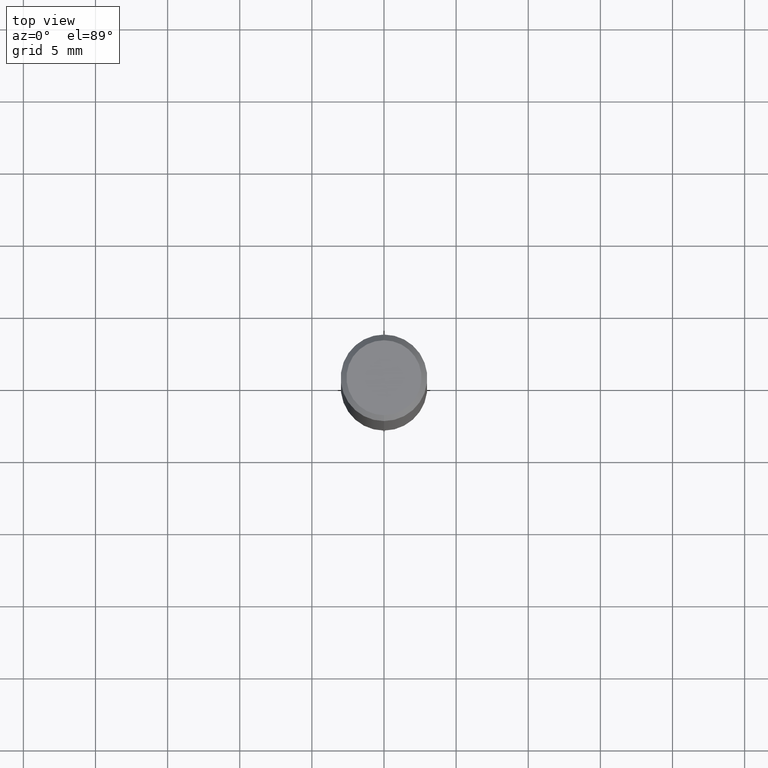
[diagram: clean part render]
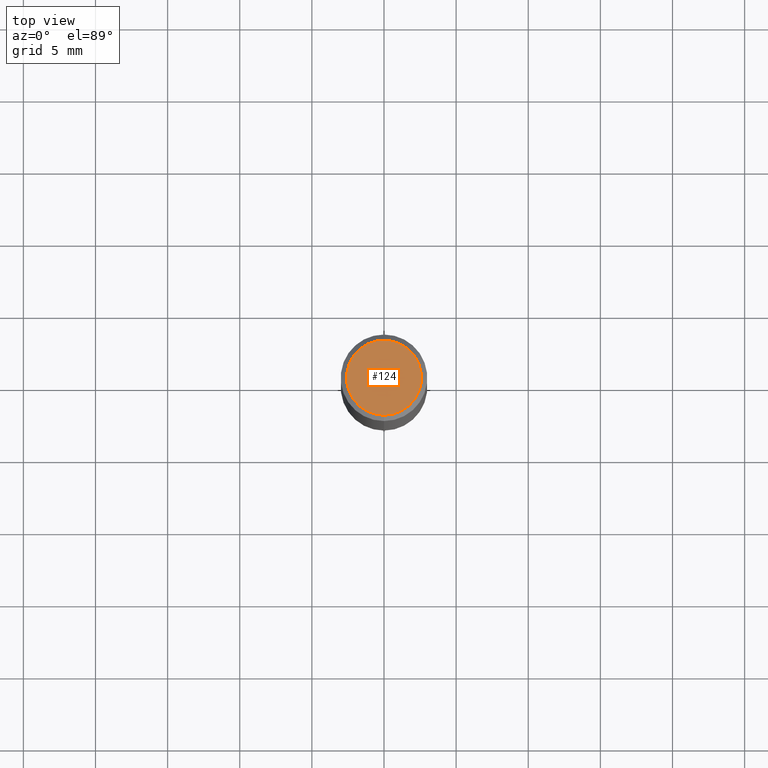
[diagram: same view with one face highlighted and labeled with its STEP entity id]
A machine part, top view. The second image highlights one B-rep face of the part: STEP entity #124.
In plain terms, the highlighted planar face has unit normal (-0, 0, 1).
Its self-contained STEP definition (entity closure, byte-faithful):
#90=EDGE_CURVE('',#104,#94,#211,.T.);
#92=EDGE_CURVE('',#94,#104,#213,.T.);
#94=VERTEX_POINT('',#215);
#104=VERTEX_POINT('',#225);
#124=ADVANCED_FACE('',(#251),#252,.T.);
#211=CIRCLE('',#340,2.6);
#213=CIRCLE('',#343,2.6);
#215=CARTESIAN_POINT('',(3.18397651993818E-016,-2.6,0.0));
#225=CARTESIAN_POINT('',(0.0,2.6,0.0));
#251=FACE_OUTER_BOUND('',#387,.T.);
#252=PLANE('',#388);
#340=AXIS2_PLACEMENT_3D('',#479,#480,#481);
#343=AXIS2_PLACEMENT_3D('',#482,#483,#484);
#387=EDGE_LOOP('',(#536,#537));
#388=AXIS2_PLACEMENT_3D('',#538,#539,#540);
#479=CARTESIAN_POINT('',(0.0,0.0,0.0));
#480=DIRECTION('',(0.0,0.0,-1.0));
#481=DIRECTION('',(0.0,1.0,0.0));
#482=CARTESIAN_POINT('',(0.0,0.0,0.0));
#483=DIRECTION('',(0.0,0.0,-1.0));
#484=DIRECTION('',(0.0,1.0,0.0));
#536=ORIENTED_EDGE('',*,*,#90,.F.);
#537=ORIENTED_EDGE('',*,*,#92,.F.);
#538=CARTESIAN_POINT('',(0.0,1.3,0.0));
#539=DIRECTION('',(-0.0,0.0,1.0));
#540=DIRECTION('',(0.0,-1.0,0.0));